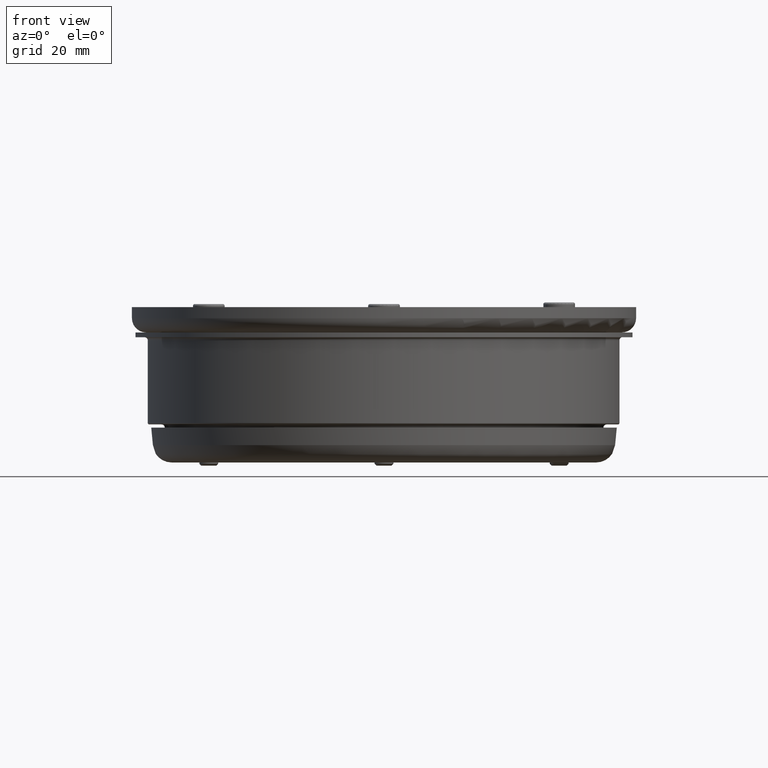
[diagram: clean part render]
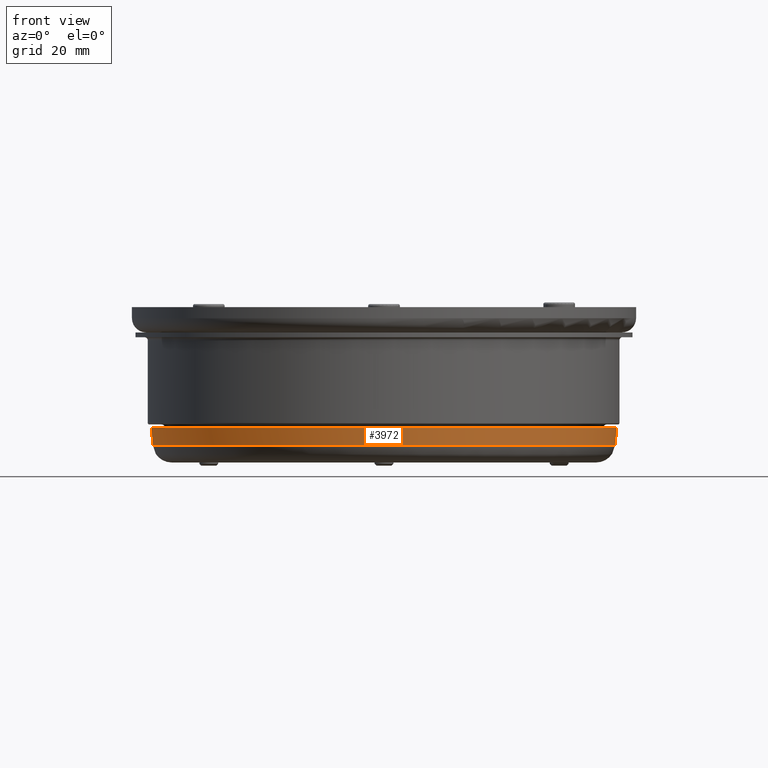
[diagram: same view with one face highlighted and labeled with its STEP entity id]
A machine part, front view. The second image highlights one B-rep face of the part: STEP entity #3972.
In plain terms, the highlighted conical surface has half-angle 5 deg.
Its self-contained STEP definition (entity closure, byte-faithful):
#498=FACE_OUTER_BOUND('',#733,.T.);
#733=EDGE_LOOP('',(#3080,#3081,#3082,#3083,#3084,#3085));
#972=LINE('',#6127,#1250);
#1250=VECTOR('',#5104,73.0352017896819);
#1597=CIRCLE('',#4406,73.4726451073115);
#1619=CIRCLE('',#4438,72.9894509529723);
#1620=CIRCLE('',#4439,72.9894509529723);
#1621=CIRCLE('',#4440,72.9894509529723);
#1809=VERTEX_POINT('',#6059);
#1830=VERTEX_POINT('',#6118);
#1831=VERTEX_POINT('',#6120);
#1832=VERTEX_POINT('',#6122);
#2268=EDGE_CURVE('',#1809,#1809,#1597,.T.);
#2297=EDGE_CURVE('',#1830,#1831,#1619,.T.);
#2298=EDGE_CURVE('',#1831,#1832,#1620,.T.);
#2299=EDGE_CURVE('',#1832,#1830,#1621,.T.);
#2301=EDGE_CURVE('',#1832,#1809,#972,.T.);
#3080=ORIENTED_EDGE('',*,*,#2298,.F.);
#3081=ORIENTED_EDGE('',*,*,#2297,.F.);
#3082=ORIENTED_EDGE('',*,*,#2299,.F.);
#3083=ORIENTED_EDGE('',*,*,#2301,.T.);
#3084=ORIENTED_EDGE('',*,*,#2268,.T.);
#3085=ORIENTED_EDGE('',*,*,#2301,.F.);
#3903=CONICAL_SURFACE('',#4442,73.0352017896819,0.0872664625997163);
#3972=ADVANCED_FACE('',(#498),#3903,.T.);
#4406=AXIS2_PLACEMENT_3D('',#6060,#5023,#5024);
#4438=AXIS2_PLACEMENT_3D('',#6121,#5094,#5095);
#4439=AXIS2_PLACEMENT_3D('',#6123,#5096,#5097);
#4440=AXIS2_PLACEMENT_3D('',#6124,#5098,#5099);
#4442=AXIS2_PLACEMENT_3D('',#6126,#5102,#5103);
#5023=DIRECTION('center_axis',(0.,-1.,0.));
#5024=DIRECTION('ref_axis',(-1.,0.,0.));
#5094=DIRECTION('center_axis',(0.,-1.,0.));
#5095=DIRECTION('ref_axis',(1.,0.,0.));
#5096=DIRECTION('center_axis',(0.,-1.,0.));
#5097=DIRECTION('ref_axis',(1.,0.,0.));
#5098=DIRECTION('center_axis',(0.,-1.,0.));
#5099=DIRECTION('ref_axis',(1.,0.,0.));
#5102=DIRECTION('center_axis',(0.,1.,0.));
#5103=DIRECTION('ref_axis',(-1.,0.,0.));
#5104=DIRECTION('',(0.087155742747658,0.996194698091746,1.0673500138323E-17));
#6059=CARTESIAN_POINT('',(88.4726451073115,7.,8.99780396555585E-15));
#6060=CARTESIAN_POINT('Origin',(15.,7.,0.));
#6118=CARTESIAN_POINT('',(15.,1.47706554351405,72.9894509529723));
#6120=CARTESIAN_POINT('',(-57.9894509529723,1.47706554351405,0.));
#6121=CARTESIAN_POINT('Origin',(15.,1.47706554351405,8.93862974810802E-15));
#6122=CARTESIAN_POINT('',(87.9894509529723,1.47706554351405,8.93862974810802E-15));
#6123=CARTESIAN_POINT('Origin',(15.,1.47706554351405,8.93862974810802E-15));
#6124=CARTESIAN_POINT('Origin',(15.,1.47706554351405,8.93862974810802E-15));
#6126=CARTESIAN_POINT('Origin',(15.,2.,0.));
#6127=CARTESIAN_POINT('',(88.0352017896819,2.,8.9442326096815E-15));